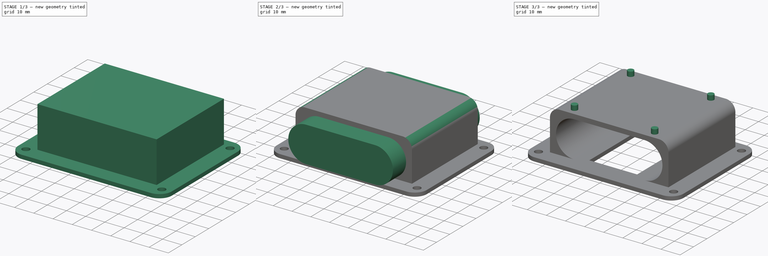
[diagram: build sequence overview — one tinted view per stage of 3, left to right]
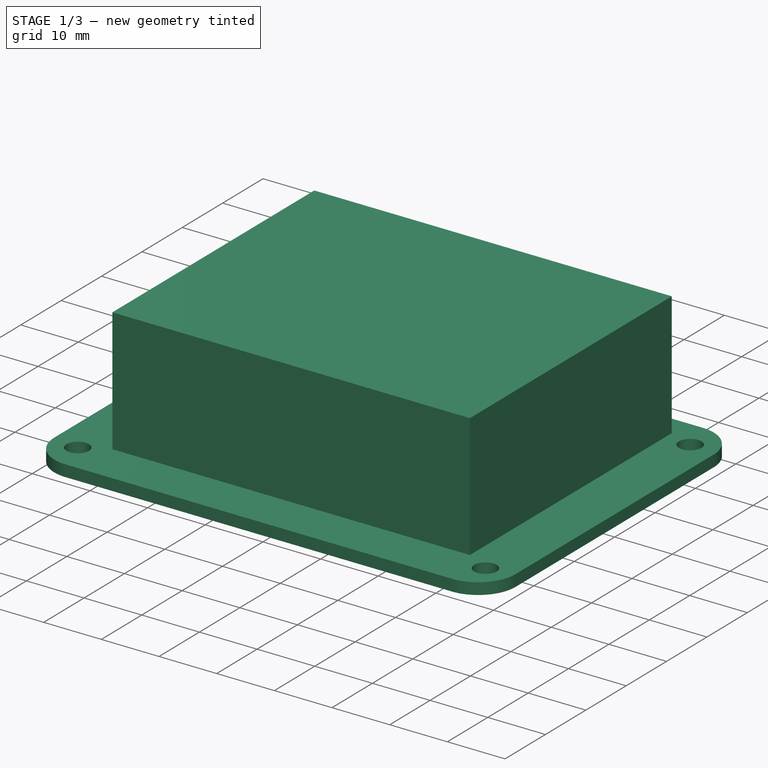
[diagram: stage 1 of 3 — iso view after this stage's code; geometry added in this stage tinted green]
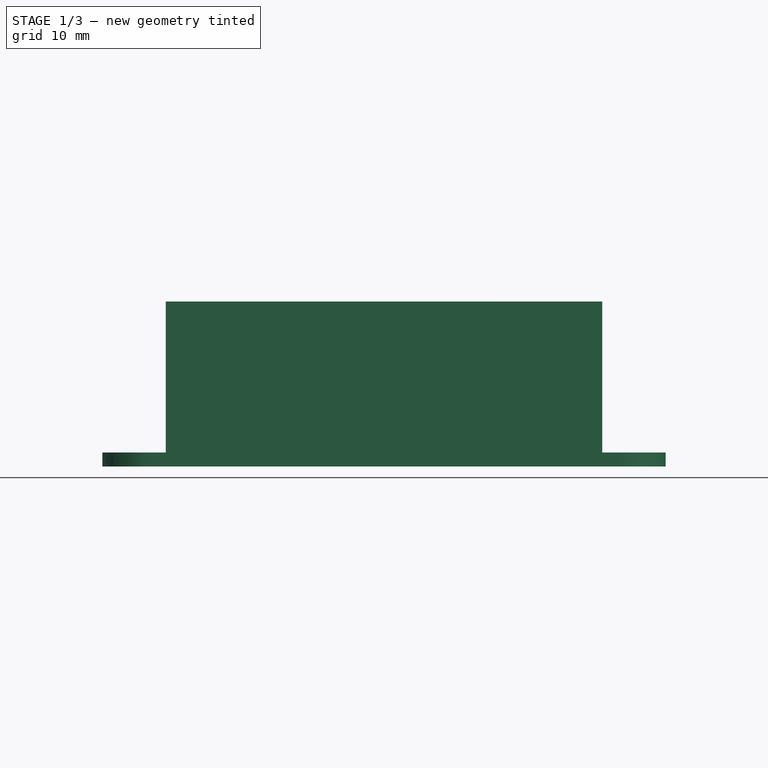
[diagram: stage 1 of 3 — front view after this stage's code; geometry added in this stage tinted green]
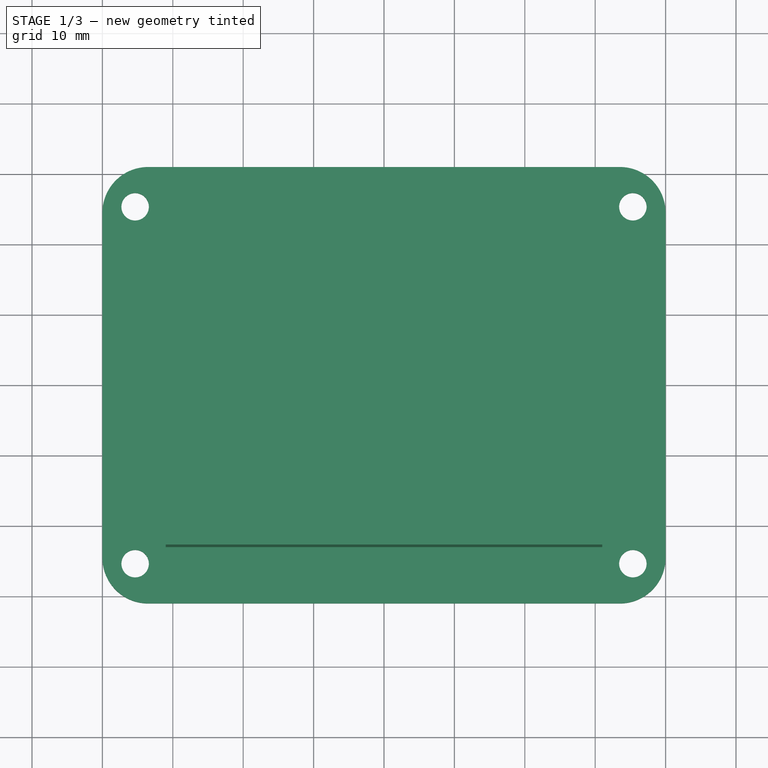
[diagram: stage 1 of 3 — top view after this stage's code; geometry added in this stage tinted green]
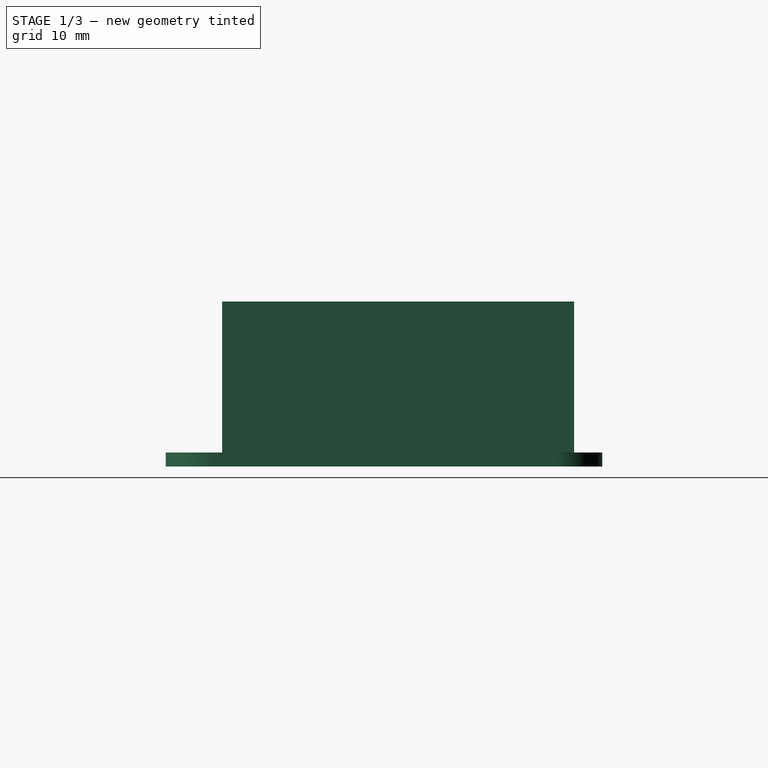
[diagram: stage 1 of 3 — right view after this stage's code; geometry added in this stage tinted green]
FCSTD DOCUMENT  (FreeCAD 0.16R4928 (Git))
Label: source_holder
License: CreativeCommons Attribution-ShareAlike
LicenseURL: http://creativecommons.org/licenses/by-sa/4.0/
objects: Sketcher::SketchObject×5, PartDesign::Pad×4, PartDesign::Fillet×1, Part::Cut×1, PartDesign::Pocket×1, Part::MultiFuse×1
note: 18 computed .brp shape members not serialized (recipe doc carries the construction recipe); baked Part::Feature solids carry a one-line shape summary decoded from their .brp

FEATURE [Sketcher::SketchObject] Sketch001
  Placement = pos=(0,0,0) rot=(0,0,1;1.5708rad)
  sketch-geometry (16):
    g0: LineSegment [constr] StartX=-25.35 StartY=35.35 StartZ=0 EndX=25.35 EndY=35.35 EndZ=0
    g1: LineSegment [constr] StartX=25.35 StartY=35.35 StartZ=0 EndX=25.35 EndY=-35.35 EndZ=0
    g2: LineSegment [constr] StartX=25.35 StartY=-35.35 StartZ=0 EndX=-25.35 EndY=-35.35 EndZ=0
    g3: LineSegment [constr] StartX=-25.35 StartY=-35.35 StartZ=0 EndX=-25.35 EndY=35.35 EndZ=0
    g4: LineSegment StartX=-24.5 StartY=40 StartZ=0 EndX=24.5 EndY=40 EndZ=0
    g5: LineSegment StartX=31 StartY=33.5 StartZ=0 EndX=31 EndY=-33.5 EndZ=0
    g6: LineSegment StartX=24.5 StartY=-40 StartZ=0 EndX=-24.5 EndY=-40 EndZ=0
    g7: LineSegment StartX=-31 StartY=-33.5 StartZ=0 EndX=-31 EndY=33.5 EndZ=0
    g8: Circle CenterX=-25.35 CenterY=35.35 CenterZ=0 NormalX=0 NormalY=0 NormalZ=1 Radius=1.95
    g9: Circle CenterX=25.35 CenterY=35.35 CenterZ=0 NormalX=0 NormalY=0 NormalZ=1 Radius=1.95
    g10: Circle CenterX=25.35 CenterY=-35.35 CenterZ=0 NormalX=0 NormalY=0 NormalZ=1 Radius=1.95
    g11: Circle CenterX=-25.35 CenterY=-35.35 CenterZ=0 NormalX=0 NormalY=0 NormalZ=1 Radius=1.95
    g12: ArcOfCircle CenterX=-24.5 CenterY=33.5 CenterZ=0 NormalX=0 NormalY=0 NormalZ=1 Radius=6.5 StartAngle=1.5708 EndAngle=3.14159
    g13: ArcOfCircle CenterX=24.5 CenterY=33.5 CenterZ=0 NormalX=0 NormalY=0 NormalZ=1 Radius=6.5 StartAngle=0 EndAngle=1.5708
    g14: ArcOfCircle CenterX=-24.5 CenterY=-33.5 CenterZ=0 NormalX=0 NormalY=0 NormalZ=1 Radius=6.5 StartAngle=3.14159 EndAngle=4.71239
    g15: ArcOfCircle CenterX=24.5 CenterY=-33.5 CenterZ=0 NormalX=0 NormalY=0 NormalZ=1 Radius=6.5 StartAngle=4.71239 EndAngle=6.28319
  constraints (38):
    c: Coincident(g0,g1)
    c: Coincident(g1,g2)
    c: Coincident(g2,g3)
    c: Coincident(g3,g0)
    c: Horizontal(g0)
    c: Horizontal(g2)
    c: Vertical(g1)
    c: Vertical(g3)
    c: Symmetric(g0,g1,g-1)
    c: DistanceY(g1) = -70.7
    c: DistanceX(g0) = 50.7
    c: Horizontal(g4)
    c: Horizontal(g6)
    c: Vertical(g5)
    c: Vertical(g7)
    c: Coincident(g8,g0)
    c: Coincident(g9,g0)
    c: Coincident(g10,g1)
    c: Coincident(g11,g2)
    c: Equal(g11,g10)
    c: Equal(g10,g9)
    c: Equal(g9,g8)
    c: Radius(g9) = 1.95
    c: Tangent(g7,g12) = 1.5708
    c: Tangent(g4,g12) = 1.5708
    c: Tangent(g4,g13) = 1.5708
    c: Tangent(g5,g13) = 1.5708
    c: Tangent(g7,g14) = 1.5708
    c: Tangent(g6,g14) = 1.5708
    c: Tangent(g6,g15) = 1.5708
    c: Tangent(g5,g15) = 1.5708
    c: Equal(g12,g14)
    c: Equal(g14,g15)
    c: Equal(g15,g13)
    c: Symmetric(g12,g15,g-1)
    c: DistanceY(g4,g6) = -80
    c: DistanceX(g7,g5) = 62
    c: Radius(g12) = 6.5
FEATURE [PartDesign::Pad] Pad001
  Length = 2
  Length2 = 100
  Placement = pos=(0,0,0) rot=(0,0,1;1.5708rad)
  Sketch = -> Sketch001
  Type = 0
FEATURE [Sketcher::SketchObject] Sketch002
  Placement = pos=(0,2,0) rot=(1,0,0;1.5708rad)
  sketch-geometry (4):
    g0: LineSegment StartX=-31 StartY=23.45 StartZ=0 EndX=31 EndY=23.45 EndZ=0
    g1: LineSegment StartX=31 StartY=23.45 StartZ=0 EndX=31 EndY=2 EndZ=0
    g2: LineSegment StartX=31 StartY=2 StartZ=0 EndX=-31 EndY=2 EndZ=0
    g3: LineSegment StartX=-31 StartY=2 StartZ=0 EndX=-31 EndY=23.45 EndZ=0
  constraints (12):
    c: Coincident(g0,g1)
    c: Coincident(g1,g2)
    c: Coincident(g2,g3)
    c: Coincident(g3,g0)
    c: Horizontal(g0)
    c: Horizontal(g2)
    c: Vertical(g1)
    c: Vertical(g3)
    c: Symmetric(g0,g0,g-2)
    c: DistanceY(g1) = 2
    c: DistanceY(g1) = -21.45
    c: DistanceX(g0) = 62
FEATURE [PartDesign::Pad] Pad002
  Length = 50
  Length2 = 100
  Midplane = true
  Placement = pos=(0,2,0) rot=(1,0,0;1.5708rad)
  Sketch = -> Sketch002
  Type = 0
FEATURE [Sketcher::SketchObject] Sketch004
  Placement = pos=(0,0,0) rot=(0.707107,0.707107,0;3.14159rad)
  Support = -> Pad001 [Face13]
  sketch-geometry (4):
    g0: LineSegment StartX=-20 StartY=12.5 StartZ=0 EndX=20 EndY=12.5 EndZ=0
    g1: LineSegment StartX=20 StartY=12.5 StartZ=0 EndX=20 EndY=-12.5 EndZ=0
    g2: LineSegment StartX=20 StartY=-12.5 StartZ=0 EndX=-20 EndY=-12.5 EndZ=0
    g3: LineSegment StartX=-20 StartY=-12.5 StartZ=0 EndX=-20 EndY=12.5 EndZ=0
  constraints (11):
    c: Coincident(g0,g1)
    c: Coincident(g1,g2)
    c: Coincident(g2,g3)
    c: Coincident(g3,g0)
    c: Horizontal(g0)
    c: Horizontal(g2)
    c: Vertical(g1)
    c: Vertical(g3)
    c: Symmetric(g1,g0,g-1)
    c: DistanceX(g0) = 40
    c: DistanceY(g1) = -25
FEATURE [PartDesign::Pocket] Pocket
  Length = 5
  Placement = pos=(0,0,0) rot=(0,0,1;1.5708rad)
  Sketch = -> Sketch004
  Type = 0
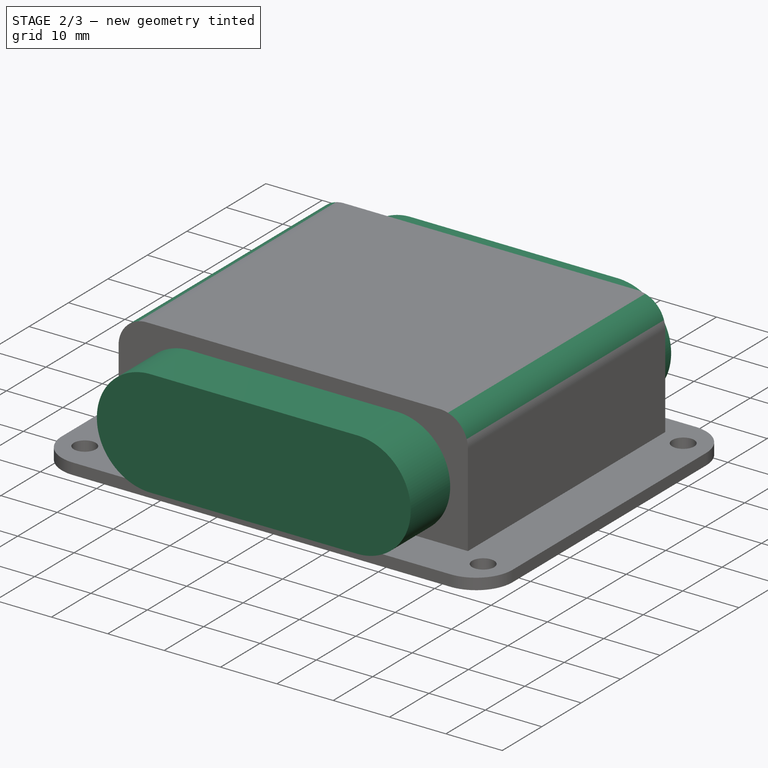
[diagram: stage 2 of 3 — iso view after this stage's code; geometry added in this stage tinted green]
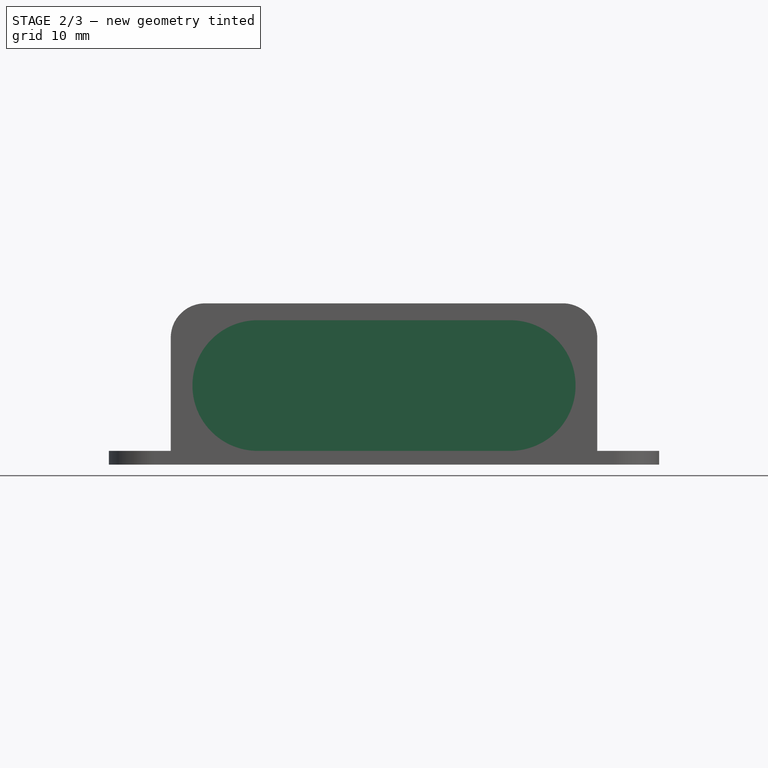
[diagram: stage 2 of 3 — front view after this stage's code; geometry added in this stage tinted green]
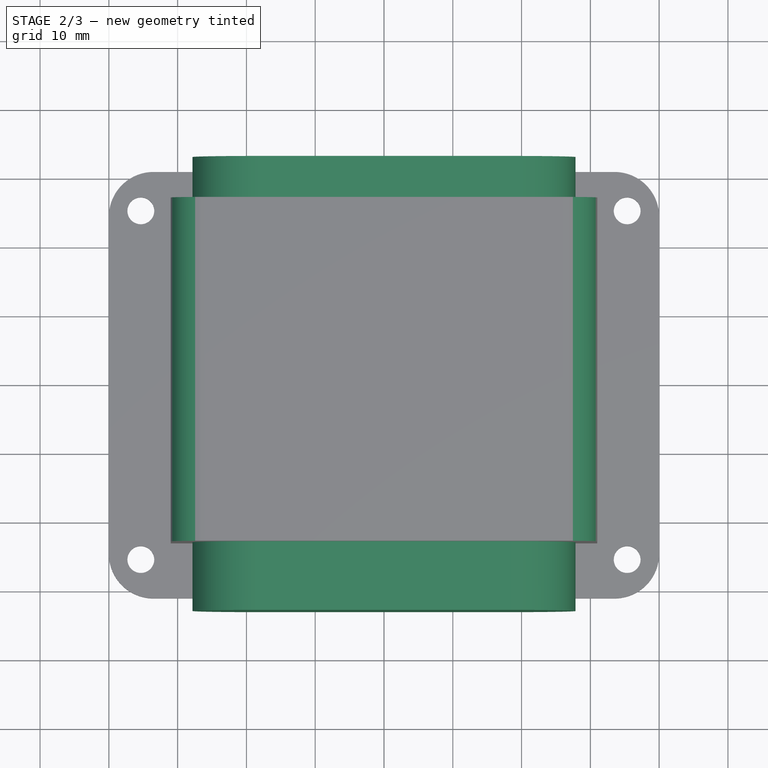
[diagram: stage 2 of 3 — top view after this stage's code; geometry added in this stage tinted green]
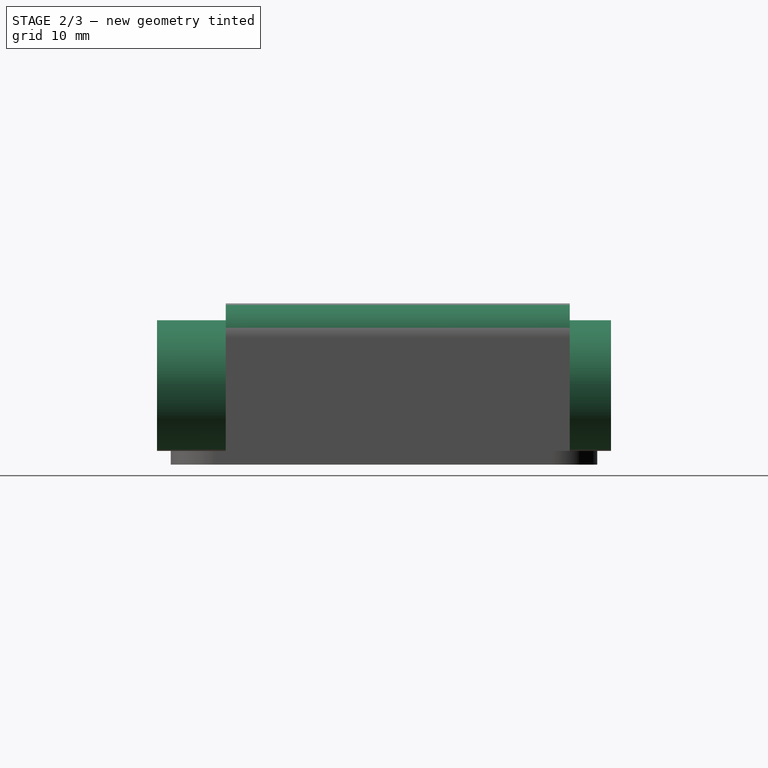
[diagram: stage 2 of 3 — right view after this stage's code; geometry added in this stage tinted green]
FEATURE [Sketcher::SketchObject] Sketch
  Placement = pos=(0,0,2) rot=(1,0,0;1.5708rad)
  sketch-geometry (8):
    g0: ArcOfCircle CenterX=-18.35 CenterY=9.5 CenterZ=0 NormalX=0 NormalY=0 NormalZ=1 Radius=9.5 StartAngle=1.5708 EndAngle=4.71239
    g1: ArcOfCircle CenterX=18.35 CenterY=9.5 CenterZ=0 NormalX=0 NormalY=0 NormalZ=1 Radius=9.5 StartAngle=4.71239 EndAngle=7.85398
    g2: LineSegment StartX=-18.35 StartY=0 StartZ=0 EndX=18.35 EndY=0 EndZ=0
    g3: LineSegment StartX=-18.35 StartY=19 StartZ=0 EndX=18.35 EndY=19 EndZ=0
    g4: GeomPoint [constr] X=-27.85 Y=9.5 Z=0
    g5: GeomPoint [constr] X=27.85 Y=9.5 Z=0
    g6: LineSegment [constr] StartX=18.35 StartY=9.5 StartZ=0 EndX=27.85 EndY=9.5 EndZ=0
    g7: LineSegment [constr] StartX=-18.35 StartY=9.5 StartZ=0 EndX=-27.85 EndY=9.5 EndZ=0
  constraints (17):
    c: Tangent(g0,g3) = 1.5708
    c: Tangent(g0,g2) = -1.5708
    c: Tangent(g2,g1) = -1.5708
    c: Tangent(g3,g1) = 1.5708
    c: Equal(g0,g1)
    c: Symmetric(g0,g1,g-2)
    c: Symmetric(g1,g0,g-1)
    c: Radius(g1) = 9.5
    c: PointOnObject(g5,g1)
    c: PointOnObject(g4,g0)
    c: Coincident(g6,g1)
    c: Horizontal(g6)
    c: Coincident(g5,g6)
    c: Coincident(g7,g0)
    c: Horizontal(g7)
    c: Coincident(g4,g7)
    c: DistanceX(g4,g5) = 55.7
FEATURE [PartDesign::Pad] Pad
  Length = 66
  Length2 = 100
  Midplane = true
  Placement = pos=(0,0,2) rot=(1,0,0;1.5708rad)
  Sketch = -> Sketch
  Type = 0
FEATURE [PartDesign::Fillet] Fillet
  Base = -> Pad002 [Edge1,Edge2]
  Placement = pos=(0,2,0) rot=(1,0,0;1.5708rad)
  Radius = 5
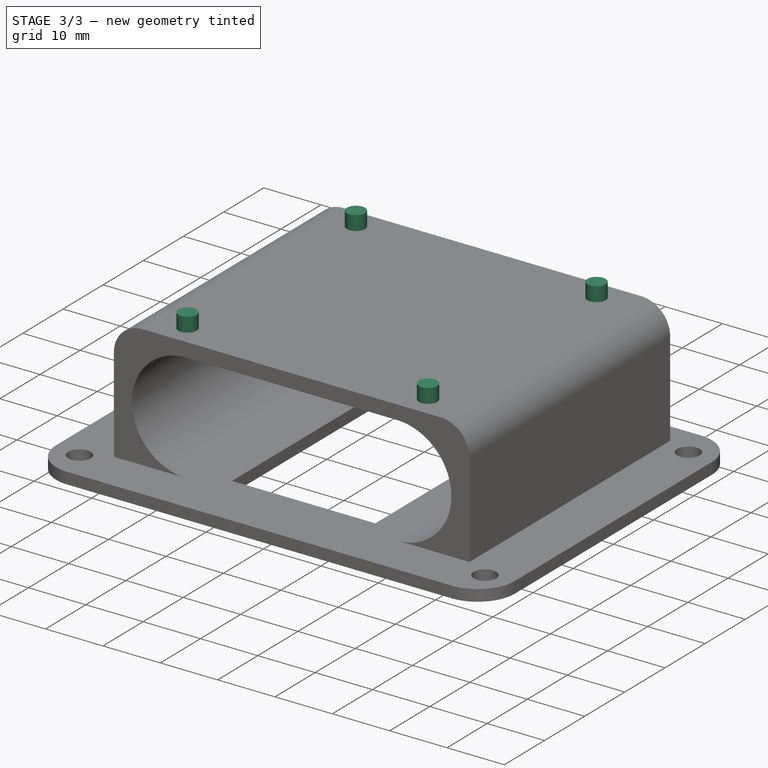
[diagram: stage 3 of 3 — iso view after this stage's code; geometry added in this stage tinted green]
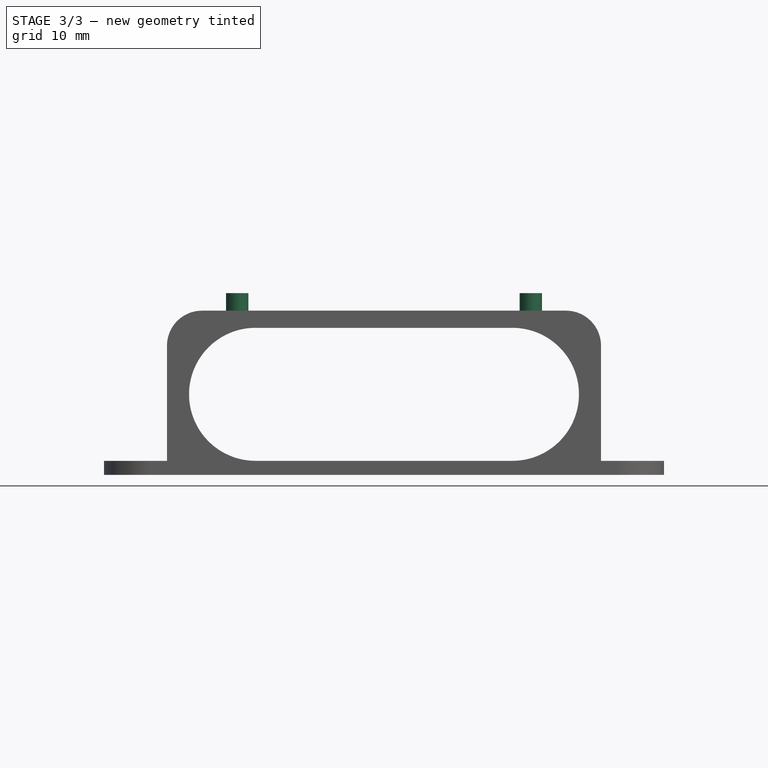
[diagram: stage 3 of 3 — front view after this stage's code; geometry added in this stage tinted green]
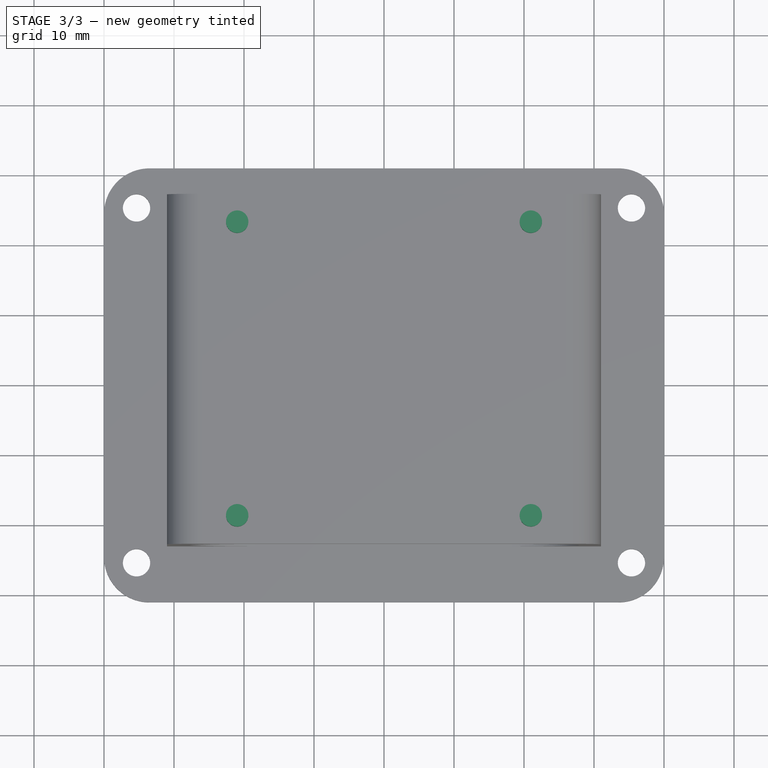
[diagram: stage 3 of 3 — top view after this stage's code; geometry added in this stage tinted green]
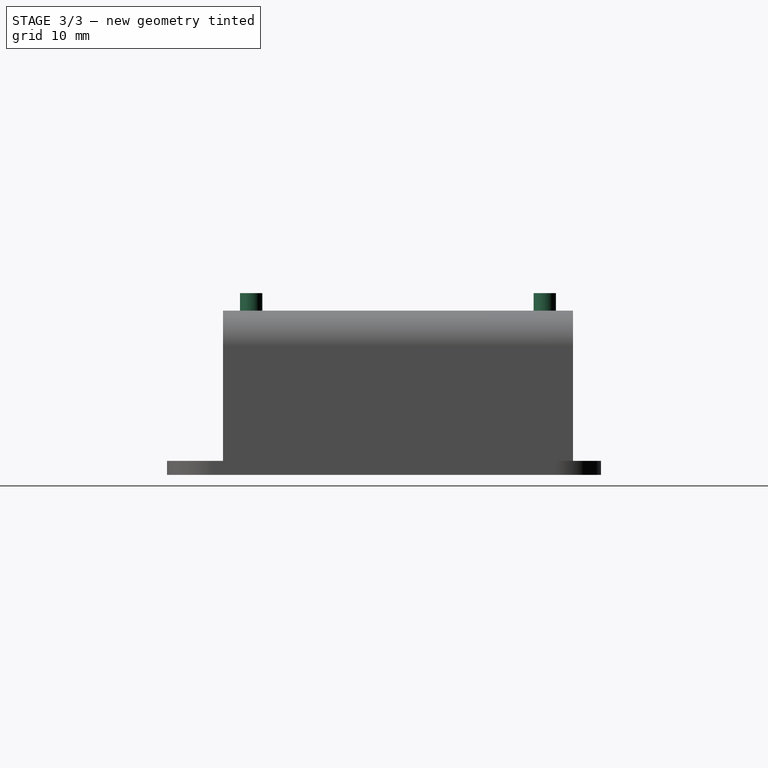
[diagram: stage 3 of 3 — right view after this stage's code; geometry added in this stage tinted green]
FEATURE [Part::Cut] Cut
  Base = -> Fillet
  Tool = -> Pad
FEATURE [Sketcher::SketchObject] Sketch003
  ExternalGeometry = -> [Cut]
  Placement = pos=(0,0,23.45) rot=(0,0,1;0rad)
  Support = -> Cut [Face1]
  sketch-geometry (10):
    g0: LineSegment [constr] StartX=-20.975 StartY=22.975 StartZ=0 EndX=20.975 EndY=22.975 EndZ=0
    g1: LineSegment [constr] StartX=20.975 StartY=22.975 StartZ=0 EndX=20.975 EndY=-18.975 EndZ=0
    g2: LineSegment [constr] StartX=20.975 StartY=-18.975 StartZ=0 EndX=-20.975 EndY=-18.975 EndZ=0
    g3: LineSegment [constr] StartX=-20.975 StartY=-18.975 StartZ=0 EndX=-20.975 EndY=22.975 EndZ=0
    g4: LineSegment [constr] StartX=-26 StartY=27 StartZ=0 EndX=26 EndY=-23 EndZ=0
    g5: GeomPoint [constr] X=0 Y=2 Z=0
    g6: Circle CenterX=-20.975 CenterY=22.975 CenterZ=0 NormalX=0 NormalY=0 NormalZ=1 Radius=1.6
    g7: Circle CenterX=-20.975 CenterY=-18.975 CenterZ=0 NormalX=0 NormalY=0 NormalZ=1 Radius=1.6
    g8: Circle CenterX=20.975 CenterY=22.975 CenterZ=0 NormalX=0 NormalY=0 NormalZ=1 Radius=1.6
    g9: Circle CenterX=20.975 CenterY=-18.975 CenterZ=0 NormalX=0 NormalY=0 NormalZ=1 Radius=1.6
  constraints (23):
    c: Coincident(g0,g1)
    c: Coincident(g1,g2)
    c: Coincident(g2,g3)
    c: Coincident(g3,g0)
    c: Horizontal(g0)
    c: Horizontal(g2)
    c: Vertical(g1)
    c: Vertical(g3)
    c: Equal(g1,g0)
    c: DistanceY(g1) = -41.95
    c: Coincident(g4,g-4)
    c: Coincident(g4,g-3)
    c: PointOnObject(g5,g4)
    c: Symmetric(g4,g4,g5)
    c: Symmetric(g0,g2,g5)
    c: Coincident(g6,g0)
    c: Coincident(g7,g2)
    c: Coincident(g8,g0)
    c: Coincident(g9,g1)
    c: Equal(g7,g9)
    c: Equal(g9,g8)
    c: Equal(g8,g6)
    c: Radius(g6) = 1.6
FEATURE [PartDesign::Pad] Pad003
  Length = 2.5
  Length2 = 100
  Sketch = -> Sketch003
  Type = 0
FEATURE [Part::MultiFuse] Fusion
  Shapes = -> [Pocket,Pad003]
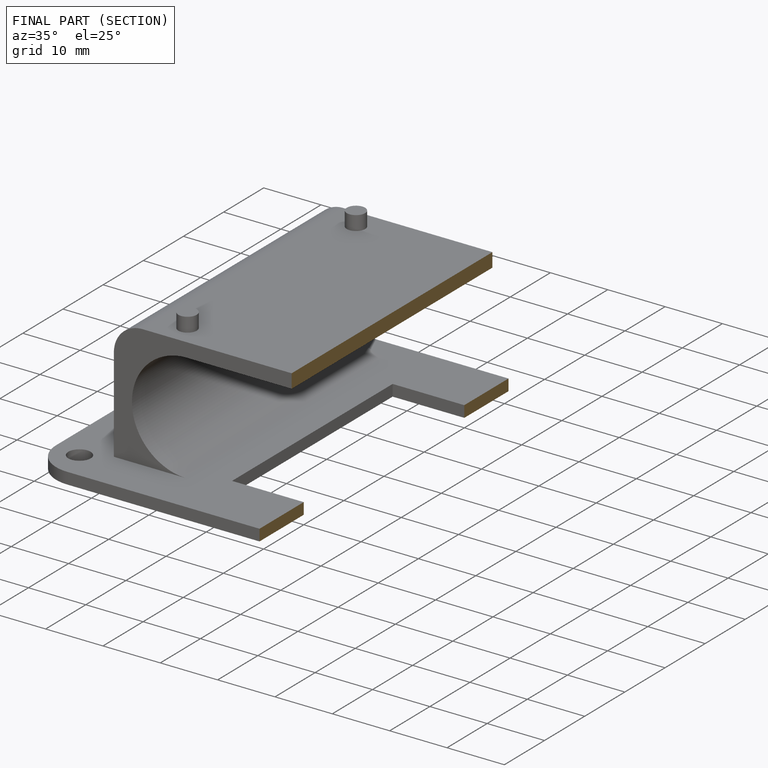
[diagram: finished part — half-section view (interior)]
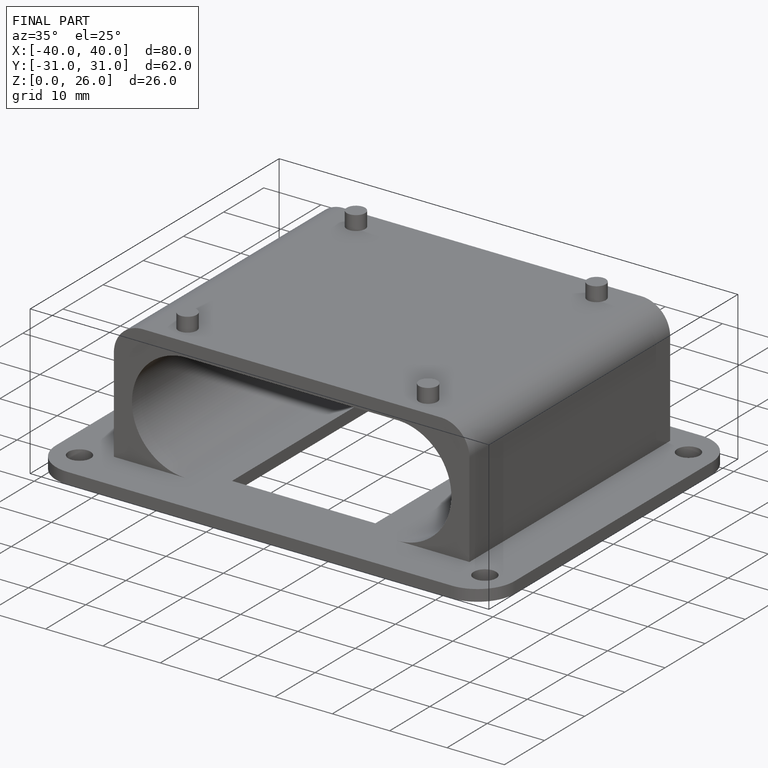
[diagram: finished part — iso view with bounding-box wireframe]
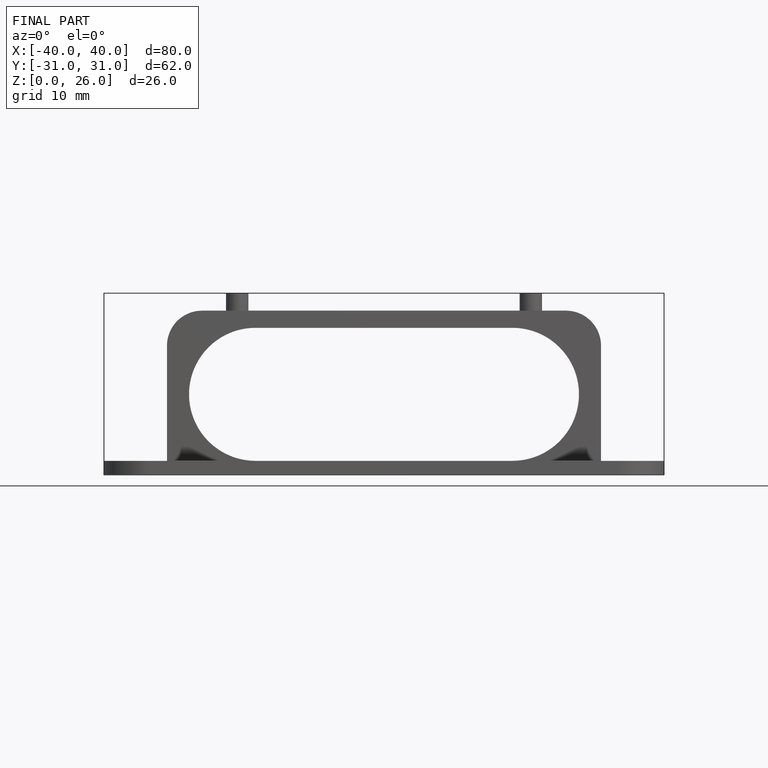
[diagram: finished part — front view with bounding-box wireframe]
